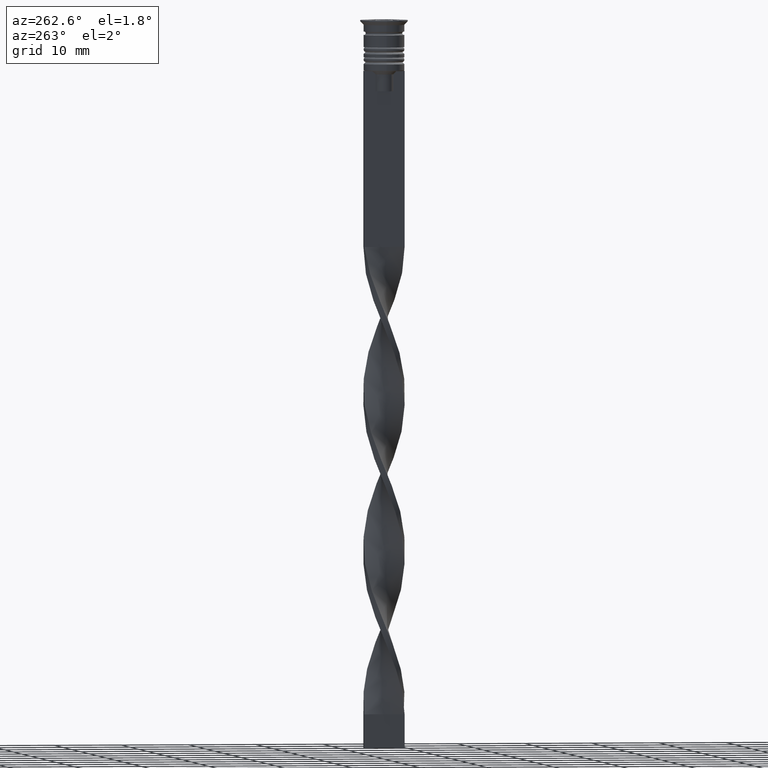
[diagram: clean part render]
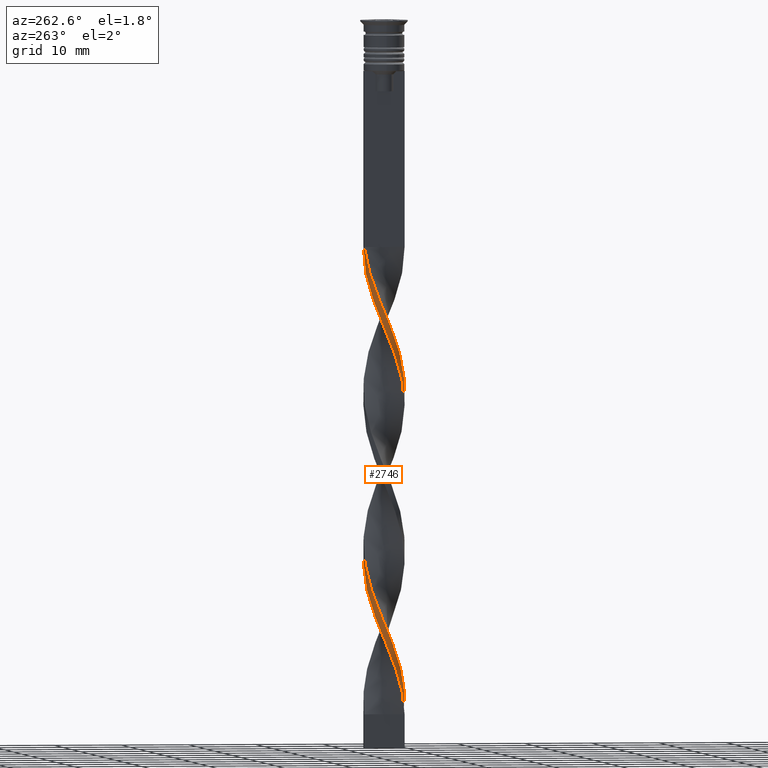
[diagram: same view with one face highlighted and labeled with its STEP entity id]
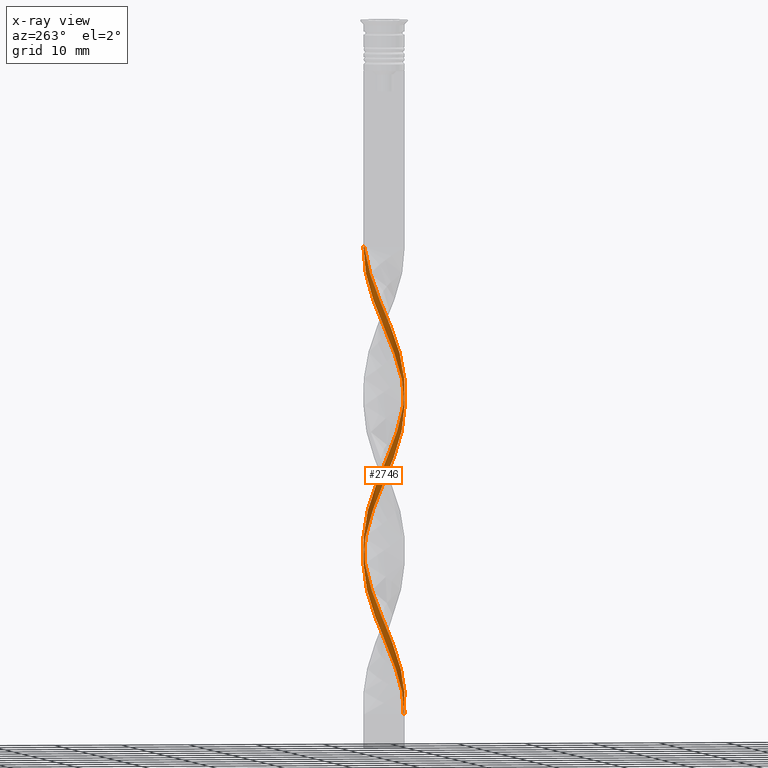
[diagram: x-ray of the same camera — body ghosted, the highlighted face saturated]
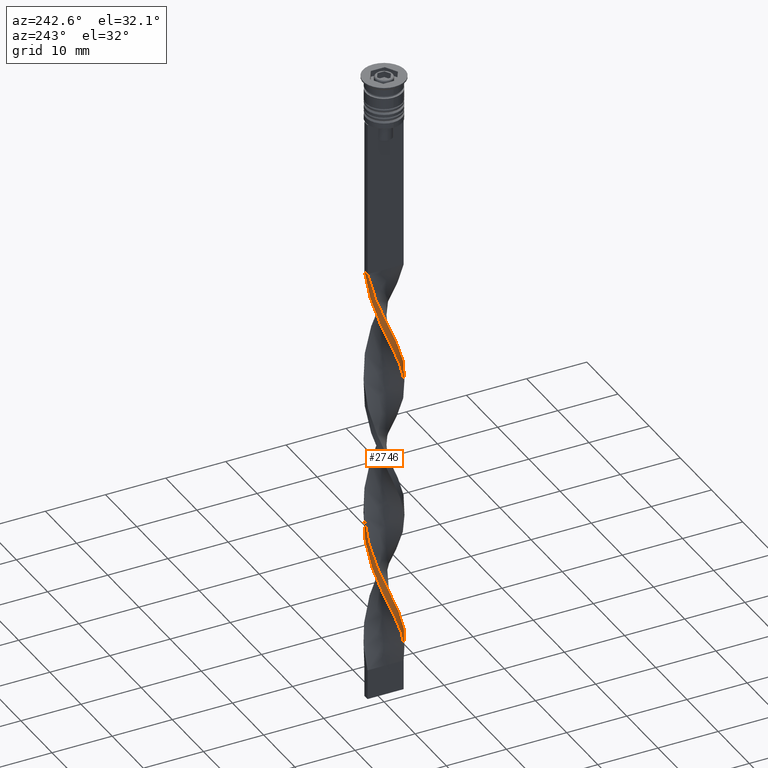
[diagram: same view with one face highlighted and labeled with its STEP entity id]
A machine part, auxiliary view. The second image highlights one B-rep face of the part: STEP entity #2746.
The next image is the same camera in x-ray: the body ghosted, the highlighted face saturated — about 0% of this face is hidden behind the body in this view.
A second angle (auxiliary view) of the same face is appended — the face is thin or edge-on in the first view.
In plain terms, the highlighted face is a freeform B-spline surface patch.
Its self-contained STEP definition (entity closure, byte-faithful):
#7 = CARTESIAN_POINT ( 'NONE',  ( -3.022034030597048559, -0.5036723384328413156, -91.00000000000001421 ) ) ;
#20 = CARTESIAN_POINT ( 'NONE',  ( -1.928028413296781762, 2.380983398537114049, -85.69230769230770761 ) ) ;
#24 = CARTESIAN_POINT ( 'NONE',  ( -1.928028413296782206, -2.380983398537113160, -50.30769230769232081 ) ) ;
#38 = CARTESIAN_POINT ( 'NONE',  ( 2.982351171577512616, -0.5963065397849001137, -65.34615384615385381 ) ) ;
#42 = CARTESIAN_POINT ( 'NONE',  ( -0.2324760841496473773, 3.032483284421934933, -35.26923076923077360 ) ) ;
#55 = CARTESIAN_POINT ( 'NONE',  ( -0.5000000000000001110, 3.000000000000000000, -79.50000000000001421 ) ) ;
#58 = CARTESIAN_POINT ( 'NONE',  ( -0.2324760841496473773, 3.032483284421934933, -81.26923076923077360 ) ) ;
#69 = CARTESIAN_POINT ( 'NONE',  ( -1.302196787976888537, -2.773203748730288076, -52.07692307692308020 ) ) ;
#72 = CARTESIAN_POINT ( 'NONE',  ( -1.542569853484617060, 2.647046231879885081, -36.15384615384615330 ) ) ;
#89 = CARTESIAN_POINT ( 'NONE',  ( 0.4999999999999998890, 3.000000000000000000, -33.50000000000000000 ) ) ;
#92 = CARTESIAN_POINT ( 'NONE',  ( 0.6006862186325140351, 3.004255577232739949, -76.84615384615386802 ) ) ;
#109 = CARTESIAN_POINT ( 'NONE',  ( 0.6006862186325115927, -3.004255577232740393, -59.15384615384616041 ) ) ;
#111 = CARTESIAN_POINT ( 'NONE',  ( 1.542569853484615949, -2.647046231879885525, -59.15384615384616041 ) ) ;
#119 = CARTESIAN_POINT ( 'NONE',  ( -0.5000000000000002220, -3.000000000000000000, -102.5000000000000142 ) ) ;
#122 = CARTESIAN_POINT ( 'NONE',  ( -2.909946448908425687, -0.9584295337030731554, -94.53846153846154721 ) ) ;
#124 = CARTESIAN_POINT ( 'NONE',  ( -2.917858282166500672, -0.8579644778149958517, -91.88461538461540101 ) ) ;
#128 = CARTESIAN_POINT ( 'NONE',  ( -0.1357340503332189474, -3.060710991611130360, -57.38461538461538680 ) ) ;
#130 = CARTESIAN_POINT ( 'NONE',  ( -1.302196787976888537, -2.773203748730288076, -52.07692307692308020 ) ) ;
#141 = CARTESIAN_POINT ( 'NONE',  ( 0.1357340503332183645, 3.060710991611130360, -80.38461538461538680 ) ) ;
#144 = CARTESIAN_POINT ( 'NONE',  ( -1.615112600636835705, -2.577093573633700174, -51.19230769230769340 ) ) ;
#158 = CARTESIAN_POINT ( 'NONE',  ( 0.4999999999999997780, -3.000000000000000000, -102.5000000000000142 ) ) ;
#169 = CARTESIAN_POINT ( 'NONE',  ( -3.054755894246598658, -0.2341835458667257397, -92.76923076923077360 ) ) ;
#173 = CARTESIAN_POINT ( 'NONE',  ( 2.596021493184669904, 1.626975080790203032, -73.30769230769232081 ) ) ;
#174 = CARTESIAN_POINT ( 'NONE',  ( -2.813682533735953228, 1.212256617197151165, -89.23076923076922640 ) ) ;
#187 =( BOUNDED_CURVE ( )  B_SPLINE_CURVE ( 2, ( #2970, #503, #42, #2680, #1566, #3233, #2914, #2630, #1350, #1299, #286, #2148, #2421, #780, #1583, #268, #2644, #1091, #761, #2401, #2130, #1863, #2383, #1606, #3214, #823, #1885, #2954, #3417, #1109, #1623, #303, #2171, #838, #1903, #574, #2364, #1037, #2094, #1827, #2896, #938, #1495, #1226, #2570, #173, #1125, #1244, #2306, #338, #3361, #1638, #2188, #2712, #58, #321, #2985, #1400, #2469, #20, #3344, #1750, #360, #651, #2011, #2771, #383, #169, #2527, #122, #3077, #3276, #882, #1945, #2155, #3254, #274, #3198, #292 ),
 .UNSPECIFIED., .F., .T. ) 
 B_SPLINE_CURVE_WITH_KNOTS ( ( 3, 2, 2, 2, 2, 2, 2, 2, 2, 2, 2, 2, 2, 2, 2, 2, 2, 2, 2, 2, 2, 2, 2, 2, 2, 2, 2, 2, 2, 2, 2, 2, 2, 2, 2, 2, 2, 2, 2, 3 ),
 ( 0.000000000000000000, 0.01923076923076923184, 0.03846153846153846367, 0.05769230769230768857, 0.07692307692307692735, 0.09615384615384615918, 0.1153846153846153771, 0.1346153846153846090, 0.1538461538461538547, 0.1730769230769230449, 0.1923076923076923184, 0.2115384615384615363, 0.2307692307692307543, 0.2500000000000000000, 0.2692307692307692180, 0.2884615384615384359, 0.3076923076923077094, 0.3269230769230769273, 0.3461538461538460898, 0.3653846153846153633, 0.3846153846153846367, 0.4038461538461539102, 0.4230769230769230727, 0.4423076923076922906, 0.4615384615384615086, 0.4807692307692307820, 0.5000000000000000000, 0.5192307692307692735, 0.5384615384615384359, 0.5576923076923077094, 0.5769230769230768718, 0.5961538461538461453, 0.6153846153846154188, 0.6346153846153845812, 0.6538461538461538547, 0.6730769230769230171, 0.6923076923076921796, 0.7115384615384615641, 0.7307692307692307265, 0.7500000000000000000 ),
 .UNSPECIFIED. ) 
 CURVE ( )  GEOMETRIC_REPRESENTATION_ITEM ( )  RATIONAL_B_SPLINE_CURVE ( ( 1.000000000000000000, 0.9927088740980539727, 1.000000000000000000, 0.9927088740980539727, 1.000000000000000000, 0.9927088740980539727, 1.000000000000000000, 0.9927088740980539727, 1.000000000000000000, 0.9927088740980539727, 1.000000000000000000, 0.9927088740980539727, 1.000000000000000000, 0.9927088740980539727, 1.000000000000000000, 0.9927088740980539727, 1.000000000000000000, 0.9927088740980539727, 1.000000000000000000, 0.9927088740980539727, 1.000000000000000000, 0.9927088740980539727, 1.000000000000000000, 0.9927088740980539727, 1.000000000000000000, 0.9927088740980539727, 1.000000000000000000, 0.9927088740980539727, 1.000000000000000000, 0.9927088740980539727, 1.000000000000000000, 0.9927088740980539727, 1.000000000000000000, 0.9927088740980539727, 1.000000000000000000, 0.9927088740980539727, 1.000000000000000000, 0.9927088740980539727, 1.000000000000000000, 0.9927088740980539727, 1.000000000000000000, 0.9927088740980539727, 1.000000000000000000, 0.9927088740980539727, 1.000000000000000000, 0.9927088740980539727, 1.000000000000000000, 0.9927088740980539727, 1.000000000000000000, 0.9927088740980539727, 1.000000000000000000, 0.9927088740980539727, 1.000000000000000000, 0.9927088740980539727, 1.000000000000000000, 0.9927088740980539727, 1.000000000000000000, 0.9927088740980539727, 1.000000000000000000, 0.9927088740980539727, 1.000000000000000000, 0.9927088740980539727, 1.000000000000000000, 0.9927088740980539727, 1.000000000000000000, 0.9927088740980539727, 1.000000000000000000, 0.9927088740980539727, 1.000000000000000000, 0.9927088740980539727, 1.000000000000000000, 0.9927088740980539727, 1.000000000000000000, 0.9927088740980539727, 1.000000000000000000, 0.9927088740980539727, 1.000000000000000000, 0.9927088740980539727, 1.000000000000000000 ) ) 
 REPRESENTATION_ITEM ( '' )  );
#190 = CARTESIAN_POINT ( 'NONE',  ( -2.363623348807936342, -1.913970915392904981, -97.19230769230770761 ) ) ;
#209 = CARTESIAN_POINT ( 'NONE',  ( -3.054755894246598658, -0.2341835458667257397, -92.76923076923075939 ) ) ;
#239 = CARTESIAN_POINT ( 'NONE',  ( -2.982351171577512616, -0.5963065397848991145, -93.65384615384617462 ) ) ;
#263 = CARTESIAN_POINT ( 'NONE',  ( -0.5000000000000001110, 3.000000000000000000, -33.50000000000000000 ) ) ;
#268 = CARTESIAN_POINT ( 'NONE',  ( -3.054755894246598658, -0.2341835458667257397, -46.76923076923077360 ) ) ;
#274 = CARTESIAN_POINT ( 'NONE',  ( -1.203417901575700277, -2.793167620134377138, -100.7307692307692406 ) ) ;
#278 = DIRECTION ( 'NONE',  ( -1.000000000000000000, 0.000000000000000000, 0.000000000000000000 ) ) ;
#282 = CARTESIAN_POINT ( 'NONE',  ( 3.038394962421823831, 0.1347443962830564002, -67.11538461538461320 ) ) ;
#286 = CARTESIAN_POINT ( 'NONE',  ( -2.627746284534976606, 1.531322782470314836, -42.34615384615385381 ) ) ;
#292 = CARTESIAN_POINT ( 'NONE',  ( -0.5000000000000002220, -3.000000000000000000, -102.5000000000000142 ) ) ;
#299 = CARTESIAN_POINT ( 'NONE',  ( 2.596021493184667683, -1.626975080790206141, -62.69230769230770051 ) ) ;
#303 = CARTESIAN_POINT ( 'NONE',  ( 1.302196787976888093, -2.773203748730288964, -60.92307692307692690 ) ) ;
#318 = CARTESIAN_POINT ( 'NONE',  ( -2.363623348807935898, 1.913970915392905869, -38.80769230769230660 ) ) ;
#321 = CARTESIAN_POINT ( 'NONE',  ( -0.6006862186325128139, 3.004255577232739949, -82.15384615384617462 ) ) ;
#334 = CARTESIAN_POINT ( 'NONE',  ( -2.596021493184668572, 1.626975080790205475, -39.69230769230769340 ) ) ;
#338 = CARTESIAN_POINT ( 'NONE',  ( 1.542569853484617948, 2.647046231879884193, -76.84615384615386802 ) ) ;
#345 = CARTESIAN_POINT ( 'NONE',  ( -2.752983971046547129, 1.292702307246639482, -86.57692307692308020 ) ) ;
#348 = CARTESIAN_POINT ( 'NONE',  ( -0.1357340503332168102, 3.060710991611130805, -78.61538461538461320 ) ) ;
#360 = CARTESIAN_POINT ( 'NONE',  ( -2.627746284534976606, 1.531322782470314836, -88.34615384615385381 ) ) ;
#365 = CARTESIAN_POINT ( 'NONE',  ( 3.022034030597048559, -0.5036723384328418707, -68.00000000000000000 ) ) ;
#368 = CARTESIAN_POINT ( 'NONE',  ( -2.441810035334000428, -1.850388947743477619, -48.53846153846154721 ) ) ;
#383 = CARTESIAN_POINT ( 'NONE',  ( -3.038394962421823386, 0.1347443962830582320, -91.88461538461540101 ) ) ;
#387 = CARTESIAN_POINT ( 'NONE',  ( 1.928028413296780874, -2.380983398537114049, -62.69230769230770051 ) ) ;
#389 = CARTESIAN_POINT ( 'NONE',  ( -2.627746284534977050, -1.531322782470313948, -47.65384615384616041 ) ) ;
#401 = CARTESIAN_POINT ( 'NONE',  ( 0.8642659496667831620, 2.939289008388869195, -78.61538461538461320 ) ) ;
#414 = CARTESIAN_POINT ( 'NONE',  ( -2.909946448908425243, -0.9584295337030731554, -48.53846153846154010 ) ) ;
#424 = VECTOR ( 'NONE', #278, 1000.000000000000000 ) ;
#475 = EDGE_CURVE ( 'NONE', #950, #483, #1723, .T. ) ;
#483 = VERTEX_POINT ( 'NONE', #914 ) ;
#503 = CARTESIAN_POINT ( 'NONE',  ( 0.1357340503332183368, 3.060710991611130360, -34.38461538461538680 ) ) ;
#539 = CARTESIAN_POINT ( 'NONE',  ( -2.813682533735953228, -1.212256617197150943, -92.76923076923075939 ) ) ;
#554 = CARTESIAN_POINT ( 'NONE',  ( -2.982351171577512172, 0.5963065397848998916, -88.34615384615385381 ) ) ;
#569 = CARTESIAN_POINT ( 'NONE',  ( -2.627746284534977050, -1.531322782470313948, -47.65384615384616041 ) ) ;
#574 = CARTESIAN_POINT ( 'NONE',  ( 2.441810035333999540, -1.850388947743479173, -64.46153846153845279 ) ) ;
#589 = CARTESIAN_POINT ( 'NONE',  ( 0.6006862186325140351, 3.004255577232739949, -76.84615384615386802 ) ) ;
#604 = CARTESIAN_POINT ( 'NONE',  ( -2.813682533735953228, -1.212256617197150943, -46.76923076923076650 ) ) ;
#607 = CARTESIAN_POINT ( 'NONE',  ( 0.2324760841496499864, 3.032483284421934489, -77.73076923076924061 ) ) ;
#614 = ORIENTED_EDGE ( 'NONE', *, *, #1256, .T. ) ;
#616 = CARTESIAN_POINT ( 'NONE',  ( -1.928028413296782206, -2.380983398537113160, -96.30769230769232081 ) ) ;
#620 = CARTESIAN_POINT ( 'NONE',  ( -0.2324760841496483210, -3.032483284421934933, -100.7307692307692406 ) ) ;
#622 = CARTESIAN_POINT ( 'NONE',  ( -2.813682533735953228, -1.212256617197150943, -46.76923076923077360 ) ) ;
#637 = CARTESIAN_POINT ( 'NONE',  ( -2.363623348807936342, -1.913970915392904981, -51.19230769230769340 ) ) ;
#651 = CARTESIAN_POINT ( 'NONE',  ( -2.813682533735953228, 1.212256617197151165, -89.23076923076924061 ) ) ;
#655 = CARTESIAN_POINT ( 'NONE',  ( 0.2324760841496463504, -3.032483284421934933, -58.26923076923077360 ) ) ;
#657 = CARTESIAN_POINT ( 'NONE',  ( 1.836897528957910586, -2.424006490937745451, -60.03846153846154010 ) ) ;
#669 = CARTESIAN_POINT ( 'NONE',  ( -0.2324760841496473773, 3.032483284421934933, -35.26923076923077360 ) ) ;
#672 = CARTESIAN_POINT ( 'NONE',  ( -2.363623348807935898, 1.913970915392905869, -84.80769230769232081 ) ) ;
#687 = CARTESIAN_POINT ( 'NONE',  ( 0.9514415033047005643, -2.888729662981513790, -60.03846153846154010 ) ) ;
#733 = CARTESIAN_POINT ( 'NONE',  ( -2.627746284534976606, 1.531322782470314836, -88.34615384615385381 ) ) ;
#761 = CARTESIAN_POINT ( 'NONE',  ( -2.752983971046547129, -1.292702307246638815, -49.42307692307693401 ) ) ;
#780 = CARTESIAN_POINT ( 'NONE',  ( -3.022034030597048559, 0.5036723384328415376, -45.00000000000000711 ) ) ;
#793 = CARTESIAN_POINT ( 'NONE',  ( 1.203417901575698501, -2.793167620134377582, -58.26923076923077360 ) ) ;
#819 = CARTESIAN_POINT ( 'NONE',  ( 0.9514415033047027848, 2.888729662981513346, -75.96153846153846700 ) ) ;
#823 = CARTESIAN_POINT ( 'NONE',  ( -0.8642659496667828289, -2.939289008388869640, -55.61538461538462741 ) ) ;
#834 = CARTESIAN_POINT ( 'NONE',  ( 2.752983971046547129, -1.292702307246639482, -63.57692307692308731 ) ) ;
#838 = CARTESIAN_POINT ( 'NONE',  ( 1.928028413296780874, -2.380983398537114493, -62.69230769230770051 ) ) ;
#850 = CARTESIAN_POINT ( 'NONE',  ( -3.054755894246598658, 0.2341835458667258230, -43.23076923076922640 ) ) ;
#865 = CARTESIAN_POINT ( 'NONE',  ( 3.022034030597048559, 0.5036723384328409825, -68.00000000000000000 ) ) ;
#868 = CARTESIAN_POINT ( 'NONE',  ( 3.054755894246598658, -0.2341835458667256287, -66.23076923076922640 ) ) ;
#882 = CARTESIAN_POINT ( 'NONE',  ( -2.363623348807936342, -1.913970915392904981, -97.19230769230770761 ) ) ;
#888 = CARTESIAN_POINT ( 'NONE',  ( -1.203417901575700277, -2.793167620134377138, -54.73076923076923350 ) ) ;
#890 = CARTESIAN_POINT ( 'NONE',  ( -2.596021493184668572, 1.626975080790205697, -85.69230769230770761 ) ) ;
#903 = CARTESIAN_POINT ( 'NONE',  ( 2.596021493184669904, 1.626975080790203032, -73.30769230769232081 ) ) ;
#906 = CARTESIAN_POINT ( 'NONE',  ( -1.542569853484617060, 2.647046231879885081, -82.15384615384617462 ) ) ;
#911 = CARTESIAN_POINT ( 'NONE',  ( -0.5000000000000002220, -3.000000000000000000, -102.5000000000000142 ) ) ;
#914 = CARTESIAN_POINT ( 'NONE',  ( 0.4999999999999997780, -3.000000000000000000, -102.5000000000000142 ) ) ;
#918 = CARTESIAN_POINT ( 'NONE',  ( 2.752983971046547573, 1.292702307246638371, -72.42307692307691980 ) ) ;
#921 = CARTESIAN_POINT ( 'NONE',  ( -2.752983971046547129, 1.292702307246639482, -40.57692307692308020 ) ) ;
#938 = CARTESIAN_POINT ( 'NONE',  ( 3.054755894246598658, 0.2341835458667245740, -69.76923076923077360 ) ) ;
#939 = CARTESIAN_POINT ( 'NONE',  ( -2.131225204431204112, -2.200966749995605820, -52.07692307692308020 ) ) ;
#941 = CARTESIAN_POINT ( 'NONE',  ( -1.836897528957910586, 2.424006490937745451, -83.03846153846154721 ) ) ;
#950 = VERTEX_POINT ( 'NONE', #2247 ) ;
#953 = CARTESIAN_POINT ( 'NONE',  ( -2.184919224315390984, 2.115686173140295612, -40.57692307692308020 ) ) ;
#978 = B_SPLINE_CURVE_WITH_KNOTS ( 'NONE', 3,
 ( #1254, #2248, #1520, #911 ),
 .UNSPECIFIED., .F., .F.,
 ( 4, 4 ),
 ( 0.000000000000000000, 1.000000000000000000 ),
 .UNSPECIFIED. ) ;
#987 = EDGE_LOOP ( 'NONE', ( #1867, #614, #2628, #2386 ) ) ;
#1011 = CARTESIAN_POINT ( 'NONE',  ( -2.917858282166500228, 0.8579644778149966289, -90.11538461538462741 ) ) ;
#1037 = CARTESIAN_POINT ( 'NONE',  ( 2.813682533735953228, -1.212256617197150721, -66.23076923076922640 ) ) ;
#1050 = CARTESIAN_POINT ( 'NONE',  ( -2.752983971046547129, -1.292702307246638815, -95.42307692307693401 ) ) ;
#1070 = CARTESIAN_POINT ( 'NONE',  ( -2.917858282166500672, -0.8579644778149958517, -91.88461538461540101 ) ) ;
#1087 = CARTESIAN_POINT ( 'NONE',  ( 2.131225204431203668, -2.200966749995606708, -60.92307692307691980 ) ) ;
#1091 = CARTESIAN_POINT ( 'NONE',  ( -2.909946448908425687, -0.9584295337030731554, -48.53846153846154721 ) ) ;
#1104 = CARTESIAN_POINT ( 'NONE',  ( -2.441810035334000428, -1.850388947743477397, -48.53846153846154010 ) ) ;
#1109 = CARTESIAN_POINT ( 'NONE',  ( 0.6006862186325115927, -3.004255577232740393, -59.15384615384616041 ) ) ;
#1121 = CARTESIAN_POINT ( 'NONE',  ( -0.8642659496667818297, 2.939289008388869640, -80.38461538461538680 ) ) ;
#1125 = CARTESIAN_POINT ( 'NONE',  ( 2.363623348807936786, 1.913970915392904315, -74.19230769230769340 ) ) ;
#1136 = CARTESIAN_POINT ( 'NONE',  ( 0.1357340503332171988, -3.060710991611130360, -55.61538461538462741 ) ) ;
#1138 = CARTESIAN_POINT ( 'NONE',  ( -2.363623348807935898, 1.913970915392905869, -38.80769230769230660 ) ) ;
#1153 = CARTESIAN_POINT ( 'NONE',  ( -2.627746284534977050, -1.531322782470313948, -93.65384615384617462 ) ) ;
#1156 = CARTESIAN_POINT ( 'NONE',  ( -1.302196787976888093, 2.773203748730288520, -37.92307692307692690 ) ) ;
#1160 = CARTESIAN_POINT ( 'NONE',  ( -2.131225204431204112, 2.200966749995606264, -83.92307692307693401 ) ) ;
#1174 = CARTESIAN_POINT ( 'NONE',  ( 3.054755894246598658, 0.2341835458667246017, -69.76923076923077360 ) ) ;
#1176 = CARTESIAN_POINT ( 'NONE',  ( -2.184919224315391428, -2.115686173140295168, -49.42307692307693401 ) ) ;
#1192 = CARTESIAN_POINT ( 'NONE',  ( -0.6006862186325128139, 3.004255577232739949, -36.15384615384615330 ) ) ;
#1195 = CARTESIAN_POINT ( 'NONE',  ( 1.928028413296783983, 2.380983398537111828, -73.30769230769232081 ) ) ;
#1209 = CARTESIAN_POINT ( 'NONE',  ( -0.2324760841496473773, 3.032483284421934933, -81.26923076923077360 ) ) ;
#1211 = CARTESIAN_POINT ( 'NONE',  ( -0.5000000000000001110, 3.000000000000000000, -79.50000000000001421 ) ) ;
#1224 = CARTESIAN_POINT ( 'NONE',  ( -2.441810035334000428, -1.850388947743477619, -94.53846153846154721 ) ) ;
#1226 = CARTESIAN_POINT ( 'NONE',  ( 2.909946448908426575, 0.9584295337030716011, -71.53846153846154721 ) ) ;
#1227 = CARTESIAN_POINT ( 'NONE',  ( -0.9514415033047011194, -2.888729662981513790, -98.96153846153848122 ) ) ;
#1244 = CARTESIAN_POINT ( 'NONE',  ( 2.131225204431204556, 2.200966749995605820, -75.07692307692308020 ) ) ;
#1245 = CARTESIAN_POINT ( 'NONE',  ( -3.038394962421823386, 0.1347443962830582320, -91.88461538461540101 ) ) ;
#1254 = CARTESIAN_POINT ( 'NONE',  ( 0.4999999999999997780, -3.000000000000000000, -102.5000000000000142 ) ) ;
#1256 = EDGE_CURVE ( 'NONE', #1491, #1621, #187, .T. ) ;
#1259 = CARTESIAN_POINT ( 'NONE',  ( -1.615112600636834816, 2.577093573633700618, -84.80769230769232081 ) ) ;
#1279 = CARTESIAN_POINT ( 'NONE',  ( -2.596021493184668572, -1.626975080790204364, -96.30769230769232081 ) ) ;
#1299 = CARTESIAN_POINT ( 'NONE',  ( -2.441810035334000872, 1.850388947743477841, -41.46153846153846700 ) ) ;
#1330 = CARTESIAN_POINT ( 'NONE',  ( -1.203417901575699389, 2.793167620134377582, -35.26923076923077360 ) ) ;
#1346 = CARTESIAN_POINT ( 'NONE',  ( 2.627746284534977050, 1.531322782470314392, -70.65384615384616041 ) ) ;
#1350 = CARTESIAN_POINT ( 'NONE',  ( -2.184919224315390984, 2.115686173140295612, -40.57692307692308020 ) ) ;
#1360 = LINE ( 'NONE', #3409, #424 ) ;
#1364 = CARTESIAN_POINT ( 'NONE',  ( -0.6006862186325138131, -3.004255577232739949, -53.84615384615384670 ) ) ;
#1383 = CARTESIAN_POINT ( 'NONE',  ( -0.1357340503332168102, 3.060710991611130805, -78.61538461538461320 ) ) ;
#1396 = CARTESIAN_POINT ( 'NONE',  ( -3.022034030597048559, -0.5036723384328413156, -45.00000000000000711 ) ) ;
#1399 = CARTESIAN_POINT ( 'NONE',  ( -3.038394962421823831, -0.1347443962830574271, -44.11538461538462030 ) ) ;
#1400 = CARTESIAN_POINT ( 'NONE',  ( -1.302196787976888315, 2.773203748730288520, -83.92307692307693401 ) ) ;
#1412 = CARTESIAN_POINT ( 'NONE',  ( 2.441810035333999540, -1.850388947743478951, -64.46153846153845279 ) ) ;
#1415 = CARTESIAN_POINT ( 'NONE',  ( 0.1357340503332171711, -3.060710991611130360, -55.61538461538462741 ) ) ;
#1433 = CARTESIAN_POINT ( 'NONE',  ( -2.752983971046547129, -1.292702307246638815, -49.42307692307693401 ) ) ;
#1436 = CARTESIAN_POINT ( 'NONE',  ( 1.203417901575698501, -2.793167620134377582, -58.26923076923077360 ) ) ;
#1451 = CARTESIAN_POINT ( 'NONE',  ( 2.813682533735953228, -1.212256617197150721, -66.23076923076922640 ) ) ;
#1453 = CARTESIAN_POINT ( 'NONE',  ( -1.836897528957910586, 2.424006490937745451, -37.03846153846154010 ) ) ;
#1464 = CARTESIAN_POINT ( 'NONE',  ( 1.203417901575701610, 2.793167620134376250, -77.73076923076924061 ) ) ;
#1466 = CARTESIAN_POINT ( 'NONE',  ( 3.038394962421823831, 0.1347443962830564002, -67.11538461538461320 ) ) ;
#1479 = CARTESIAN_POINT ( 'NONE',  ( 0.1357340503332183645, 3.060710991611130360, -34.38461538461538680 ) ) ;
#1491 = VERTEX_POINT ( 'NONE', #1891 ) ;
#1495 = CARTESIAN_POINT ( 'NONE',  ( 2.982351171577512616, 0.5963065397848995586, -70.65384615384616041 ) ) ;
#1513 = FACE_OUTER_BOUND ( 'NONE', #987, .T. ) ;
#1520 = CARTESIAN_POINT ( 'NONE',  ( -0.1666666666666669072, -3.000000000000000000, -102.5000000000000142 ) ) ;
#1546 = CARTESIAN_POINT ( 'NONE',  ( -2.909946448908426131, 0.9584295337030733775, -87.46153846153849543 ) ) ;
#1566 = CARTESIAN_POINT ( 'NONE',  ( -0.9514415033047005643, 2.888729662981513790, -37.03846153846154010 ) ) ;
#1583 = CARTESIAN_POINT ( 'NONE',  ( -3.038394962421823386, 0.1347443962830582320, -45.88461538461538680 ) ) ;
#1601 = CARTESIAN_POINT ( 'NONE',  ( -2.627746284534977050, -1.531322782470313948, -93.65384615384617462 ) ) ;
#1606 = CARTESIAN_POINT ( 'NONE',  ( -1.542569853484617726, -2.647046231879884193, -53.84615384615384670 ) ) ;
#1612 = EDGE_CURVE ( 'NONE', #483, #1621, #978, .T. ) ;
#1619 = CARTESIAN_POINT ( 'NONE',  ( -2.982351171577512172, 0.5963065397848998916, -42.34615384615385381 ) ) ;
#1621 = VERTEX_POINT ( 'NONE', #119 ) ;
#1623 = CARTESIAN_POINT ( 'NONE',  ( 0.9514415033047005643, -2.888729662981513790, -60.03846153846154010 ) ) ;
#1634 = CARTESIAN_POINT ( 'NONE',  ( -2.184919224315391428, -2.115686173140295168, -49.42307692307693401 ) ) ;
#1638 = CARTESIAN_POINT ( 'NONE',  ( 0.8642659496667832730, 2.939289008388869195, -78.61538461538461320 ) ) ;
#1656 = CARTESIAN_POINT ( 'NONE',  ( 1.615112600636836149, 2.577093573633699730, -74.19230769230769340 ) ) ;
#1670 = CARTESIAN_POINT ( 'NONE',  ( -1.836897528957910586, 2.424006490937745451, -83.03846153846154721 ) ) ;
#1674 = CARTESIAN_POINT ( 'NONE',  ( -2.909946448908426131, 0.9584295337030733775, -41.46153846153846700 ) ) ;
#1683 = CARTESIAN_POINT ( 'NONE',  ( -0.6006862186325138131, -3.004255577232739949, -99.84615384615386802 ) ) ;
#1686 = CARTESIAN_POINT ( 'NONE',  ( -3.054755894246598658, -0.2341835458667257397, -46.76923076923076650 ) ) ;
#1705 = CARTESIAN_POINT ( 'NONE',  ( 2.982351171577512616, 0.5963065397848995586, -70.65384615384616041 ) ) ;
#1708 = CARTESIAN_POINT ( 'NONE',  ( -1.203417901575699389, 2.793167620134377582, -35.26923076923077360 ) ) ;
#1723 =( BOUNDED_CURVE ( )  B_SPLINE_CURVE ( 2, ( #3034, #2468, #1708, #72, #1453, #2521, #1138, #2275, #921, #1674, #3068, #3335, #1399, #2759, #2778, #622, #389, #368, #1176, #2507, #144, #130, #1953, #2224, #3018, #1415, #2257, #3002, #1436, #111, #657, #2201, #2745, #3264, #1726, #2793, #3313, #868, #1466, #1936, #2809, #1986, #2534, #2240, #2482, #1195, #2003, #1967, #3300, #92, #607, #348, #1211, #3285, #1740, #906, #941, #1160, #672, #890, #2575, #1546, #3105, #2858, #2342, #3396, #124, #3307, #1153, #1224, #3079, #616, #1980, #3063, #3012, #1683, #2820, #3050, #3293 ),
 .UNSPECIFIED., .F., .T. ) 
 B_SPLINE_CURVE_WITH_KNOTS ( ( 3, 2, 2, 2, 2, 2, 2, 2, 2, 2, 2, 2, 2, 2, 2, 2, 2, 2, 2, 2, 2, 2, 2, 2, 2, 2, 2, 2, 2, 2, 2, 2, 2, 2, 2, 2, 2, 2, 2, 3 ),
 ( 0.000000000000000000, 0.01923076923076923184, 0.03846153846153846367, 0.05769230769230768857, 0.07692307692307692735, 0.09615384615384615918, 0.1153846153846153771, 0.1346153846153846090, 0.1538461538461538547, 0.1730769230769230449, 0.1923076923076923184, 0.2115384615384615363, 0.2307692307692307543, 0.2500000000000000000, 0.2692307692307692180, 0.2884615384615384359, 0.3076923076923077094, 0.3269230769230769273, 0.3461538461538460898, 0.3653846153846153633, 0.3846153846153846367, 0.4038461538461539102, 0.4230769230769230727, 0.4423076923076922906, 0.4615384615384615086, 0.4807692307692307820, 0.5000000000000000000, 0.5192307692307692735, 0.5384615384615384359, 0.5576923076923077094, 0.5769230769230768718, 0.5961538461538461453, 0.6153846153846154188, 0.6346153846153845812, 0.6538461538461538547, 0.6730769230769230171, 0.6923076923076921796, 0.7115384615384615641, 0.7307692307692307265, 0.7500000000000000000 ),
 .UNSPECIFIED. ) 
 CURVE ( )  GEOMETRIC_REPRESENTATION_ITEM ( )  RATIONAL_B_SPLINE_CURVE ( ( 1.000000000000000000, 0.9927088740980539727, 1.000000000000000000, 0.9927088740980539727, 1.000000000000000000, 0.9927088740980539727, 1.000000000000000000, 0.9927088740980539727, 1.000000000000000000, 0.9927088740980539727, 1.000000000000000000, 0.9927088740980539727, 1.000000000000000000, 0.9927088740980539727, 1.000000000000000000, 0.9927088740980539727, 1.000000000000000000, 0.9927088740980539727, 1.000000000000000000, 0.9927088740980539727, 1.000000000000000000, 0.9927088740980539727, 1.000000000000000000, 0.9927088740980539727, 1.000000000000000000, 0.9927088740980539727, 1.000000000000000000, 0.9927088740980539727, 1.000000000000000000, 0.9927088740980539727, 1.000000000000000000, 0.9927088740980539727, 1.000000000000000000, 0.9927088740980539727, 1.000000000000000000, 0.9927088740980539727, 1.000000000000000000, 0.9927088740980539727, 1.000000000000000000, 0.9927088740980539727, 1.000000000000000000, 0.9927088740980539727, 1.000000000000000000, 0.9927088740980539727, 1.000000000000000000, 0.9927088740980539727, 1.000000000000000000, 0.9927088740980539727, 1.000000000000000000, 0.9927088740980539727, 1.000000000000000000, 0.9927088740980539727, 1.000000000000000000, 0.9927088740980539727, 1.000000000000000000, 0.9927088740980539727, 1.000000000000000000, 0.9927088740980539727, 1.000000000000000000, 0.9927088740980539727, 1.000000000000000000, 0.9927088740980539727, 1.000000000000000000, 0.9927088740980539727, 1.000000000000000000, 0.9927088740980539727, 1.000000000000000000, 0.9927088740980539727, 1.000000000000000000, 0.9927088740980539727, 1.000000000000000000, 0.9927088740980539727, 1.000000000000000000, 0.9927088740980539727, 1.000000000000000000, 0.9927088740980539727, 1.000000000000000000, 0.9927088740980539727, 1.000000000000000000 ) ) 
 REPRESENTATION_ITEM ( '' )  );
#1724 = CARTESIAN_POINT ( 'NONE',  ( 1.542569853484618170, 2.647046231879884193, -76.84615384615386802 ) ) ;
#1726 = CARTESIAN_POINT ( 'NONE',  ( 2.752983971046547129, -1.292702307246639482, -63.57692307692308731 ) ) ;
#1737 = CARTESIAN_POINT ( 'NONE',  ( 2.184919224315390984, -2.115686173140295612, -63.57692307692308731 ) ) ;
#1738 =( BOUNDED_SURFACE ( )  B_SPLINE_SURFACE ( 1, 2, ( 
 ( #263, #2859, #1330, #3397, #3366, #2070, #318, #334, #2417, #3245, #1619, #850, #3261, #1396, #2126, #604, #569, #1104, #1634, #24, #2466, #69, #3188, #1364, #1914, #1136, #2199, #2432, #793, #2980, #2168, #1087, #2691, #299, #834, #1857, #38, #2742, #282, #865, #2452, #2143, #1346, #2950, #3209, #2708, #1656, #1934, #819, #589, #2999, #1383, #55, #1121, #3229, #2931, #1670, #1899, #1880, #2730, #345, #2967, #554, #2182, #2398, #7, #1070, #539, #1601, #2677, #2807, #3298, #1756, #2254, #1227, #2221, #620, #2289, #158 ),
 ( #89, #1479, #669, #1192, #2272, #1156, #1950, #3346, #953, #2238, #1983, #3282, #3066, #2505, #2001, #1686, #2791, #414, #1433, #3333, #637, #939, #2015, #2553, #888, #3081, #3054, #128, #655, #109, #687, #2823, #3015, #387, #1737, #1412, #2479, #1451, #2757, #365, #3311, #1174, #1705, #2776, #918, #903, #2519, #1965, #3032, #1724, #1464, #401, #2531, #141, #1209, #2067, #3148, #2638, #1259, #2086, #1820, #3130, #733, #174, #1011, #2032, #1245, #209, #239, #1799, #1050, #1279, #190, #2107, #2323, #3380, #2589, #2841, #3167 ) ),
 .UNSPECIFIED., .F., .F., .F. ) 
 B_SPLINE_SURFACE_WITH_KNOTS ( ( 2, 2 ),
 ( 3, 2, 2, 2, 2, 2, 2, 2, 2, 2, 2, 2, 2, 2, 2, 2, 2, 2, 2, 2, 2, 2, 2, 2, 2, 2, 2, 2, 2, 2, 2, 2, 2, 2, 2, 2, 2, 2, 2, 3 ),
 ( 0.000000000000000000, 1.000000000000000000 ),
 ( 0.000000000000000000, 0.01923076923076923184, 0.03846153846153846367, 0.05769230769230769551, 0.07692307692307692735, 0.09615384615384615918, 0.1153846153846153910, 0.1346153846153846090, 0.1538461538461538547, 0.1730769230769230727, 0.1923076923076923184, 0.2115384615384615363, 0.2307692307692307820, 0.2500000000000000000, 0.2692307692307692180, 0.2884615384615384359, 0.3076923076923077094, 0.3269230769230769273, 0.3461538461538461453, 0.3653846153846153633, 0.3846153846153846367, 0.4038461538461538547, 0.4230769230769230727, 0.4423076923076922906, 0.4615384615384615641, 0.4807692307692307820, 0.5000000000000000000, 0.5192307692307692735, 0.5384615384615384359, 0.5576923076923077094, 0.5769230769230768718, 0.5961538461538461453, 0.6153846153846154188, 0.6346153846153845812, 0.6538461538461538547, 0.6730769230769231282, 0.6923076923076922906, 0.7115384615384615641, 0.7307692307692307265, 0.7500000000000000000 ),
 .UNSPECIFIED. ) 
 GEOMETRIC_REPRESENTATION_ITEM ( )  RATIONAL_B_SPLINE_SURFACE ( (
 ( 1.000000000000000000, 0.9927088740980539727, 1.000000000000000000, 0.9927088740980539727, 1.000000000000000000, 0.9927088740980539727, 1.000000000000000000, 0.9927088740980539727, 1.000000000000000000, 0.9927088740980539727, 1.000000000000000000, 0.9927088740980539727, 1.000000000000000000, 0.9927088740980539727, 1.000000000000000000, 0.9927088740980539727, 1.000000000000000000, 0.9927088740980539727, 1.000000000000000000, 0.9927088740980539727, 1.000000000000000000, 0.9927088740980539727, 1.000000000000000000, 0.9927088740980539727, 1.000000000000000000, 0.9927088740980539727, 1.000000000000000000, 0.9927088740980539727, 1.000000000000000000, 0.9927088740980539727, 1.000000000000000000, 0.9927088740980539727, 1.000000000000000000, 0.9927088740980539727, 1.000000000000000000, 0.9927088740980539727, 1.000000000000000000, 0.9927088740980539727, 1.000000000000000000, 0.9927088740980539727, 1.000000000000000000, 0.9927088740980539727, 1.000000000000000000, 0.9927088740980539727, 1.000000000000000000, 0.9927088740980539727, 1.000000000000000000, 0.9927088740980539727, 1.000000000000000000, 0.9927088740980539727, 1.000000000000000000, 0.9927088740980539727, 1.000000000000000000, 0.9927088740980539727, 1.000000000000000000, 0.9927088740980539727, 1.000000000000000000, 0.9927088740980539727, 1.000000000000000000, 0.9927088740980539727, 1.000000000000000000, 0.9927088740980539727, 1.000000000000000000, 0.9927088740980539727, 1.000000000000000000, 0.9927088740980539727, 1.000000000000000000, 0.9927088740980539727, 1.000000000000000000, 0.9927088740980539727, 1.000000000000000000, 0.9927088740980539727, 1.000000000000000000, 0.9927088740980539727, 1.000000000000000000, 0.9927088740980539727, 1.000000000000000000, 0.9927088740980539727, 1.000000000000000000),
 ( 1.000000000000000000, 0.9927088740980539727, 1.000000000000000000, 0.9927088740980539727, 1.000000000000000000, 0.9927088740980539727, 1.000000000000000000, 0.9927088740980539727, 1.000000000000000000, 0.9927088740980539727, 1.000000000000000000, 0.9927088740980539727, 1.000000000000000000, 0.9927088740980539727, 1.000000000000000000, 0.9927088740980539727, 1.000000000000000000, 0.9927088740980539727, 1.000000000000000000, 0.9927088740980539727, 1.000000000000000000, 0.9927088740980539727, 1.000000000000000000, 0.9927088740980539727, 1.000000000000000000, 0.9927088740980539727, 1.000000000000000000, 0.9927088740980539727, 1.000000000000000000, 0.9927088740980539727, 1.000000000000000000, 0.9927088740980539727, 1.000000000000000000, 0.9927088740980539727, 1.000000000000000000, 0.9927088740980539727, 1.000000000000000000, 0.9927088740980539727, 1.000000000000000000, 0.9927088740980539727, 1.000000000000000000, 0.9927088740980539727, 1.000000000000000000, 0.9927088740980539727, 1.000000000000000000, 0.9927088740980539727, 1.000000000000000000, 0.9927088740980539727, 1.000000000000000000, 0.9927088740980539727, 1.000000000000000000, 0.9927088740980539727, 1.000000000000000000, 0.9927088740980539727, 1.000000000000000000, 0.9927088740980539727, 1.000000000000000000, 0.9927088740980539727, 1.000000000000000000, 0.9927088740980539727, 1.000000000000000000, 0.9927088740980539727, 1.000000000000000000, 0.9927088740980539727, 1.000000000000000000, 0.9927088740980539727, 1.000000000000000000, 0.9927088740980539727, 1.000000000000000000, 0.9927088740980539727, 1.000000000000000000, 0.9927088740980539727, 1.000000000000000000, 0.9927088740980539727, 1.000000000000000000, 0.9927088740980539727, 1.000000000000000000, 0.9927088740980539727, 1.000000000000000000) ) ) 
 REPRESENTATION_ITEM ( '' )  SURFACE ( )  );
#1740 = CARTESIAN_POINT ( 'NONE',  ( -1.203417901575699389, 2.793167620134377582, -81.26923076923077360 ) ) ;
#1750 = CARTESIAN_POINT ( 'NONE',  ( -2.441810035334000872, 1.850388947743477841, -87.46153846153849543 ) ) ;
#1756 = CARTESIAN_POINT ( 'NONE',  ( -1.615112600636835705, -2.577093573633700174, -97.19230769230770761 ) ) ;
#1799 = CARTESIAN_POINT ( 'NONE',  ( -2.909946448908425243, -0.9584295337030731554, -94.53846153846153300 ) ) ;
#1820 = CARTESIAN_POINT ( 'NONE',  ( -2.184919224315390984, 2.115686173140295612, -86.57692307692308020 ) ) ;
#1827 = CARTESIAN_POINT ( 'NONE',  ( 3.022034030597048559, -0.5036723384328418707, -68.00000000000000000 ) ) ;
#1838 = EDGE_CURVE ( 'NONE', #1491, #950, #1360, .T. ) ;
#1857 = CARTESIAN_POINT ( 'NONE',  ( 2.909946448908424799, -0.9584295337030752648, -64.46153846153845279 ) ) ;
#1863 = CARTESIAN_POINT ( 'NONE',  ( -2.131225204431204112, -2.200966749995605820, -52.07692307692308020 ) ) ;
#1867 = ORIENTED_EDGE ( 'NONE', *, *, #1838, .F. ) ;
#1880 = CARTESIAN_POINT ( 'NONE',  ( -2.363623348807935898, 1.913970915392905869, -84.80769230769232081 ) ) ;
#1885 = CARTESIAN_POINT ( 'NONE',  ( -0.5000000000000002220, -3.000000000000000000, -56.50000000000000711 ) ) ;
#1891 = CARTESIAN_POINT ( 'NONE',  ( 0.4999999999999998890, 3.000000000000000000, -33.50000000000000000 ) ) ;
#1899 = CARTESIAN_POINT ( 'NONE',  ( -2.131225204431204112, 2.200966749995606264, -83.92307692307691980 ) ) ;
#1903 = CARTESIAN_POINT ( 'NONE',  ( 2.184919224315390984, -2.115686173140295612, -63.57692307692308731 ) ) ;
#1914 = CARTESIAN_POINT ( 'NONE',  ( -0.2324760841496483210, -3.032483284421934933, -54.73076923076923350 ) ) ;
#1934 = CARTESIAN_POINT ( 'NONE',  ( 1.302196787976888759, 2.773203748730288076, -75.07692307692308020 ) ) ;
#1936 = CARTESIAN_POINT ( 'NONE',  ( 3.022034030597048559, 0.5036723384328409825, -68.00000000000000000 ) ) ;
#1945 = CARTESIAN_POINT ( 'NONE',  ( -2.131225204431204112, -2.200966749995605820, -98.07692307692309441 ) ) ;
#1950 = CARTESIAN_POINT ( 'NONE',  ( -1.615112600636834816, 2.577093573633700618, -38.80769230769230660 ) ) ;
#1953 = CARTESIAN_POINT ( 'NONE',  ( -0.9514415033047011194, -2.888729662981513790, -52.96153846153845990 ) ) ;
#1965 = CARTESIAN_POINT ( 'NONE',  ( 2.131225204431204556, 2.200966749995605820, -75.07692307692308020 ) ) ;
#1967 = CARTESIAN_POINT ( 'NONE',  ( 1.302196787976888759, 2.773203748730288076, -75.07692307692308020 ) ) ;
#1980 = CARTESIAN_POINT ( 'NONE',  ( -1.615112600636835705, -2.577093573633700174, -97.19230769230770761 ) ) ;
#1983 = CARTESIAN_POINT ( 'NONE',  ( -2.627746284534976606, 1.531322782470314836, -42.34615384615385381 ) ) ;
#1986 = CARTESIAN_POINT ( 'NONE',  ( 2.813682533735953673, 1.212256617197149833, -69.76923076923077360 ) ) ;
#2001 = CARTESIAN_POINT ( 'NONE',  ( -3.038394962421823386, 0.1347443962830582320, -45.88461538461538680 ) ) ;
#2003 = CARTESIAN_POINT ( 'NONE',  ( 1.615112600636836149, 2.577093573633699730, -74.19230769230769340 ) ) ;
#2011 = CARTESIAN_POINT ( 'NONE',  ( -2.917858282166500228, 0.8579644778149966289, -90.11538461538462741 ) ) ;
#2015 = CARTESIAN_POINT ( 'NONE',  ( -1.836897528957911030, -2.424006490937745006, -52.96153846153845990 ) ) ;
#2032 = CARTESIAN_POINT ( 'NONE',  ( -3.022034030597048559, 0.5036723384328415376, -91.00000000000001421 ) ) ;
#2067 = CARTESIAN_POINT ( 'NONE',  ( -0.6006862186325128139, 3.004255577232739949, -82.15384615384617462 ) ) ;
#2070 = CARTESIAN_POINT ( 'NONE',  ( -2.131225204431204112, 2.200966749995606264, -37.92307692307692690 ) ) ;
#2086 = CARTESIAN_POINT ( 'NONE',  ( -1.928028413296781762, 2.380983398537113604, -85.69230769230770761 ) ) ;
#2094 = CARTESIAN_POINT ( 'NONE',  ( 2.917858282166500228, -0.8579644778149976281, -67.11538461538461320 ) ) ;
#2107 = CARTESIAN_POINT ( 'NONE',  ( -2.131225204431204112, -2.200966749995605820, -98.07692307692308020 ) ) ;
#2126 = CARTESIAN_POINT ( 'NONE',  ( -2.917858282166500672, -0.8579644778149958517, -45.88461538461538680 ) ) ;
#2130 = CARTESIAN_POINT ( 'NONE',  ( -2.363623348807936342, -1.913970915392904981, -51.19230769230769340 ) ) ;
#2143 = CARTESIAN_POINT ( 'NONE',  ( 2.813682533735953673, 1.212256617197149833, -69.76923076923077360 ) ) ;
#2148 = CARTESIAN_POINT ( 'NONE',  ( -2.813682533735953228, 1.212256617197151165, -43.23076923076923350 ) ) ;
#2155 = CARTESIAN_POINT ( 'NONE',  ( -1.836897528957911030, -2.424006490937745006, -98.96153846153848122 ) ) ;
#2168 = CARTESIAN_POINT ( 'NONE',  ( 1.836897528957910586, -2.424006490937745451, -60.03846153846154010 ) ) ;
#2171 = CARTESIAN_POINT ( 'NONE',  ( 1.615112600636834372, -2.577093573633701062, -61.80769230769231370 ) ) ;
#2182 = CARTESIAN_POINT ( 'NONE',  ( -3.054755894246598658, 0.2341835458667258230, -89.23076923076922640 ) ) ;
#2188 = CARTESIAN_POINT ( 'NONE',  ( 0.4999999999999998890, 3.000000000000000000, -79.50000000000001421 ) ) ;
#2199 = CARTESIAN_POINT ( 'NONE',  ( 0.4999999999999997780, -3.000000000000000000, -56.50000000000000711 ) ) ;
#2201 = CARTESIAN_POINT ( 'NONE',  ( 2.131225204431203668, -2.200966749995606708, -60.92307692307692690 ) ) ;
#2221 = CARTESIAN_POINT ( 'NONE',  ( -0.6006862186325138131, -3.004255577232739949, -99.84615384615385381 ) ) ;
#2224 = CARTESIAN_POINT ( 'NONE',  ( -0.6006862186325138131, -3.004255577232739949, -53.84615384615384670 ) ) ;
#2238 = CARTESIAN_POINT ( 'NONE',  ( -2.441810035334000872, 1.850388947743477619, -41.46153846153846700 ) ) ;
#2240 = CARTESIAN_POINT ( 'NONE',  ( 2.441810035334001761, 1.850388947743476509, -71.53846153846154721 ) ) ;
#2247 = CARTESIAN_POINT ( 'NONE',  ( -0.5000000000000001110, 3.000000000000000000, -33.50000000000000000 ) ) ;
#2248 = CARTESIAN_POINT ( 'NONE',  ( 0.1666666666666664631, -3.000000000000000000, -102.5000000000000142 ) ) ;
#2254 = CARTESIAN_POINT ( 'NONE',  ( -1.302196787976888537, -2.773203748730288076, -98.07692307692308020 ) ) ;
#2257 = CARTESIAN_POINT ( 'NONE',  ( 0.4999999999999997780, -3.000000000000000000, -56.50000000000000711 ) ) ;
#2272 = CARTESIAN_POINT ( 'NONE',  ( -0.9514415033047005643, 2.888729662981513790, -37.03846153846154010 ) ) ;
#2275 = CARTESIAN_POINT ( 'NONE',  ( -2.596021493184668572, 1.626975080790205697, -39.69230769230769340 ) ) ;
#2289 = CARTESIAN_POINT ( 'NONE',  ( 0.1357340503332171988, -3.060710991611130360, -101.6153846153846132 ) ) ;
#2306 = CARTESIAN_POINT ( 'NONE',  ( 1.836897528957912362, 2.424006490937744118, -75.96153846153846700 ) ) ;
#2323 = CARTESIAN_POINT ( 'NONE',  ( -1.836897528957911030, -2.424006490937745006, -98.96153846153848122 ) ) ;
#2342 = CARTESIAN_POINT ( 'NONE',  ( -3.038394962421823831, -0.1347443962830574271, -90.11538461538462741 ) ) ;
#2364 = CARTESIAN_POINT ( 'NONE',  ( 2.627746284534976606, -1.531322782470315058, -65.34615384615385381 ) ) ;
#2383 = CARTESIAN_POINT ( 'NONE',  ( -1.836897528957911030, -2.424006490937745006, -52.96153846153845990 ) ) ;
#2386 = ORIENTED_EDGE ( 'NONE', *, *, #475, .F. ) ;
#2398 = CARTESIAN_POINT ( 'NONE',  ( -3.038394962421823831, -0.1347443962830574271, -90.11538461538462741 ) ) ;
#2401 = CARTESIAN_POINT ( 'NONE',  ( -2.596021493184668572, -1.626975080790204586, -50.30769230769231370 ) ) ;
#2417 = CARTESIAN_POINT ( 'NONE',  ( -2.752983971046547129, 1.292702307246639482, -40.57692307692308020 ) ) ;
#2421 = CARTESIAN_POINT ( 'NONE',  ( -2.917858282166500228, 0.8579644778149966289, -44.11538461538462030 ) ) ;
#2432 = CARTESIAN_POINT ( 'NONE',  ( 0.8642659496667812746, -2.939289008388869640, -57.38461538461538680 ) ) ;
#2452 = CARTESIAN_POINT ( 'NONE',  ( 2.917858282166500672, 0.8579644778149940754, -68.88461538461538680 ) ) ;
#2466 = CARTESIAN_POINT ( 'NONE',  ( -1.615112600636835705, -2.577093573633700174, -51.19230769230769340 ) ) ;
#2468 = CARTESIAN_POINT ( 'NONE',  ( -0.8642659496667818297, 2.939289008388869640, -34.38461538461538680 ) ) ;
#2469 = CARTESIAN_POINT ( 'NONE',  ( -1.615112600636834816, 2.577093573633700618, -84.80769230769232081 ) ) ;
#2479 = CARTESIAN_POINT ( 'NONE',  ( 2.627746284534976606, -1.531322782470315058, -65.34615384615385381 ) ) ;
#2482 = CARTESIAN_POINT ( 'NONE',  ( 2.184919224315392317, 2.115686173140294724, -72.42307692307691980 ) ) ;
#2505 = CARTESIAN_POINT ( 'NONE',  ( -3.022034030597048559, 0.5036723384328415376, -45.00000000000000711 ) ) ;
#2507 = CARTESIAN_POINT ( 'NONE',  ( -1.928028413296782206, -2.380983398537113160, -50.30769230769231370 ) ) ;
#2519 = CARTESIAN_POINT ( 'NONE',  ( 2.363623348807936786, 1.913970915392904315, -74.19230769230769340 ) ) ;
#2521 = CARTESIAN_POINT ( 'NONE',  ( -2.131225204431204112, 2.200966749995606264, -37.92307692307692690 ) ) ;
#2527 = CARTESIAN_POINT ( 'NONE',  ( -2.982351171577512616, -0.5963065397848991145, -93.65384615384617462 ) ) ;
#2531 = CARTESIAN_POINT ( 'NONE',  ( 0.4999999999999998890, 3.000000000000000000, -79.50000000000001421 ) ) ;
#2534 = CARTESIAN_POINT ( 'NONE',  ( 2.627746284534977050, 1.531322782470314392, -70.65384615384616041 ) ) ;
#2553 = CARTESIAN_POINT ( 'NONE',  ( -1.542569853484617948, -2.647046231879884193, -53.84615384615384670 ) ) ;
#2570 = CARTESIAN_POINT ( 'NONE',  ( 2.752983971046547573, 1.292702307246638371, -72.42307692307691980 ) ) ;
#2575 = CARTESIAN_POINT ( 'NONE',  ( -2.752983971046547129, 1.292702307246639482, -86.57692307692308020 ) ) ;
#2589 = CARTESIAN_POINT ( 'NONE',  ( -1.203417901575700277, -2.793167620134377138, -100.7307692307692406 ) ) ;
#2628 = ORIENTED_EDGE ( 'NONE', *, *, #1612, .F. ) ;
#2630 = CARTESIAN_POINT ( 'NONE',  ( -1.928028413296781762, 2.380983398537114049, -39.69230769230769340 ) ) ;
#2638 = CARTESIAN_POINT ( 'NONE',  ( -1.302196787976888093, 2.773203748730288520, -83.92307692307691980 ) ) ;
#2644 = CARTESIAN_POINT ( 'NONE',  ( -2.982351171577512616, -0.5963065397848991145, -47.65384615384616041 ) ) ;
#2677 = CARTESIAN_POINT ( 'NONE',  ( -2.441810035334000428, -1.850388947743477397, -94.53846153846153300 ) ) ;
#2680 = CARTESIAN_POINT ( 'NONE',  ( -0.6006862186325128139, 3.004255577232739949, -36.15384615384615330 ) ) ;
#2691 = CARTESIAN_POINT ( 'NONE',  ( 2.363623348807935898, -1.913970915392906313, -61.80769230769231370 ) ) ;
#2708 = CARTESIAN_POINT ( 'NONE',  ( 1.928028413296783983, 2.380983398537111828, -73.30769230769232081 ) ) ;
#2712 = CARTESIAN_POINT ( 'NONE',  ( 0.1357340503332183368, 3.060710991611130360, -80.38461538461538680 ) ) ;
#2730 = CARTESIAN_POINT ( 'NONE',  ( -2.596021493184668572, 1.626975080790205475, -85.69230769230770761 ) ) ;
#2742 = CARTESIAN_POINT ( 'NONE',  ( 3.054755894246598658, -0.2341835458667256287, -66.23076923076922640 ) ) ;
#2745 = CARTESIAN_POINT ( 'NONE',  ( 2.363623348807935898, -1.913970915392906313, -61.80769230769231370 ) ) ;
#2746 = ADVANCED_FACE ( 'NONE', ( #1513 ), #1738, .T. ) ;
#2757 = CARTESIAN_POINT ( 'NONE',  ( 2.917858282166500228, -0.8579644778149976281, -67.11538461538461320 ) ) ;
#2759 = CARTESIAN_POINT ( 'NONE',  ( -3.022034030597048559, -0.5036723384328413156, -45.00000000000000711 ) ) ;
#2771 = CARTESIAN_POINT ( 'NONE',  ( -3.022034030597048559, 0.5036723384328415376, -91.00000000000001421 ) ) ;
#2776 = CARTESIAN_POINT ( 'NONE',  ( 2.909946448908426131, 0.9584295337030716011, -71.53846153846154721 ) ) ;
#2778 = CARTESIAN_POINT ( 'NONE',  ( -2.917858282166500672, -0.8579644778149958517, -45.88461538461538680 ) ) ;
#2791 = CARTESIAN_POINT ( 'NONE',  ( -2.982351171577512616, -0.5963065397848991145, -47.65384615384616041 ) ) ;
#2793 = CARTESIAN_POINT ( 'NONE',  ( 2.909946448908425243, -0.9584295337030751538, -64.46153846153845279 ) ) ;
#2807 = CARTESIAN_POINT ( 'NONE',  ( -2.184919224315391428, -2.115686173140295168, -95.42307692307693401 ) ) ;
#2809 = CARTESIAN_POINT ( 'NONE',  ( 2.917858282166500672, 0.8579644778149940754, -68.88461538461538680 ) ) ;
#2820 = CARTESIAN_POINT ( 'NONE',  ( -0.2324760841496483210, -3.032483284421934933, -100.7307692307692406 ) ) ;
#2823 = CARTESIAN_POINT ( 'NONE',  ( 1.302196787976887871, -2.773203748730288964, -60.92307692307691980 ) ) ;
#2841 = CARTESIAN_POINT ( 'NONE',  ( -0.8642659496667827179, -2.939289008388869640, -101.6153846153846132 ) ) ;
#2858 = CARTESIAN_POINT ( 'NONE',  ( -3.054755894246598658, 0.2341835458667258507, -89.23076923076924061 ) ) ;
#2859 = CARTESIAN_POINT ( 'NONE',  ( -0.8642659496667818297, 2.939289008388869640, -34.38461538461538680 ) ) ;
#2896 = CARTESIAN_POINT ( 'NONE',  ( 3.038394962421823386, -0.1347443962830599251, -68.88461538461538680 ) ) ;
#2914 = CARTESIAN_POINT ( 'NONE',  ( -1.615112600636834816, 2.577093573633700618, -38.80769230769230660 ) ) ;
#2931 = CARTESIAN_POINT ( 'NONE',  ( -1.542569853484617060, 2.647046231879885081, -82.15384615384617462 ) ) ;
#2950 = CARTESIAN_POINT ( 'NONE',  ( 2.441810035334001761, 1.850388947743476509, -71.53846153846154721 ) ) ;
#2954 = CARTESIAN_POINT ( 'NONE',  ( -0.1357340503332189752, -3.060710991611130360, -57.38461538461538680 ) ) ;
#2967 = CARTESIAN_POINT ( 'NONE',  ( -2.909946448908425687, 0.9584295337030733775, -87.46153846153849543 ) ) ;
#2970 = CARTESIAN_POINT ( 'NONE',  ( 0.4999999999999998890, 3.000000000000000000, -33.50000000000000000 ) ) ;
#2980 = CARTESIAN_POINT ( 'NONE',  ( 1.542569853484615949, -2.647046231879885525, -59.15384615384616041 ) ) ;
#2985 = CARTESIAN_POINT ( 'NONE',  ( -0.9514415033047005643, 2.888729662981513790, -83.03846153846154721 ) ) ;
#2999 = CARTESIAN_POINT ( 'NONE',  ( 0.2324760841496499864, 3.032483284421934489, -77.73076923076924061 ) ) ;
#3002 = CARTESIAN_POINT ( 'NONE',  ( 0.8642659496667811636, -2.939289008388869640, -57.38461538461538680 ) ) ;
#3012 = CARTESIAN_POINT ( 'NONE',  ( -0.9514415033047011194, -2.888729662981513790, -98.96153846153848122 ) ) ;
#3015 = CARTESIAN_POINT ( 'NONE',  ( 1.615112600636834372, -2.577093573633701062, -61.80769230769231370 ) ) ;
#3018 = CARTESIAN_POINT ( 'NONE',  ( -0.2324760841496483210, -3.032483284421934933, -54.73076923076923350 ) ) ;
#3032 = CARTESIAN_POINT ( 'NONE',  ( 1.836897528957912362, 2.424006490937744118, -75.96153846153846700 ) ) ;
#3034 = CARTESIAN_POINT ( 'NONE',  ( -0.5000000000000001110, 3.000000000000000000, -33.50000000000000000 ) ) ;
#3050 = CARTESIAN_POINT ( 'NONE',  ( 0.1357340503332171711, -3.060710991611130360, -101.6153846153846274 ) ) ;
#3054 = CARTESIAN_POINT ( 'NONE',  ( -0.5000000000000002220, -3.000000000000000000, -56.50000000000000711 ) ) ;
#3063 = CARTESIAN_POINT ( 'NONE',  ( -1.302196787976888537, -2.773203748730288076, -98.07692307692309441 ) ) ;
#3066 = CARTESIAN_POINT ( 'NONE',  ( -2.917858282166500228, 0.8579644778149966289, -44.11538461538462030 ) ) ;
#3068 = CARTESIAN_POINT ( 'NONE',  ( -2.982351171577512172, 0.5963065397848998916, -42.34615384615385381 ) ) ;
#3077 = CARTESIAN_POINT ( 'NONE',  ( -2.752983971046547129, -1.292702307246638815, -95.42307692307693401 ) ) ;
#3079 = CARTESIAN_POINT ( 'NONE',  ( -2.184919224315391428, -2.115686173140295168, -95.42307692307693401 ) ) ;
#3081 = CARTESIAN_POINT ( 'NONE',  ( -0.8642659496667827179, -2.939289008388869640, -55.61538461538462741 ) ) ;
#3105 = CARTESIAN_POINT ( 'NONE',  ( -2.982351171577512172, 0.5963065397848998916, -88.34615384615385381 ) ) ;
#3130 = CARTESIAN_POINT ( 'NONE',  ( -2.441810035334000872, 1.850388947743477619, -87.46153846153849543 ) ) ;
#3148 = CARTESIAN_POINT ( 'NONE',  ( -0.9514415033047005643, 2.888729662981513790, -83.03846153846154721 ) ) ;
#3167 = CARTESIAN_POINT ( 'NONE',  ( -0.5000000000000002220, -3.000000000000000000, -102.5000000000000142 ) ) ;
#3188 = CARTESIAN_POINT ( 'NONE',  ( -0.9514415033047011194, -2.888729662981513790, -52.96153846153845990 ) ) ;
#3198 = CARTESIAN_POINT ( 'NONE',  ( -0.8642659496667828289, -2.939289008388869640, -101.6153846153846274 ) ) ;
#3209 = CARTESIAN_POINT ( 'NONE',  ( 2.184919224315392317, 2.115686173140294724, -72.42307692307691980 ) ) ;
#3214 = CARTESIAN_POINT ( 'NONE',  ( -1.203417901575700277, -2.793167620134377138, -54.73076923076923350 ) ) ;
#3229 = CARTESIAN_POINT ( 'NONE',  ( -1.203417901575699389, 2.793167620134377582, -81.26923076923077360 ) ) ;
#3233 = CARTESIAN_POINT ( 'NONE',  ( -1.302196787976888315, 2.773203748730288520, -37.92307692307692690 ) ) ;
#3245 = CARTESIAN_POINT ( 'NONE',  ( -2.909946448908425687, 0.9584295337030733775, -41.46153846153846700 ) ) ;
#3254 = CARTESIAN_POINT ( 'NONE',  ( -1.542569853484617726, -2.647046231879884193, -99.84615384615386802 ) ) ;
#3261 = CARTESIAN_POINT ( 'NONE',  ( -3.038394962421823831, -0.1347443962830574271, -44.11538461538462030 ) ) ;
#3264 = CARTESIAN_POINT ( 'NONE',  ( 2.596021493184667683, -1.626975080790206141, -62.69230769230770051 ) ) ;
#3276 = CARTESIAN_POINT ( 'NONE',  ( -2.596021493184668572, -1.626975080790204586, -96.30769230769232081 ) ) ;
#3282 = CARTESIAN_POINT ( 'NONE',  ( -2.813682533735953228, 1.212256617197151165, -43.23076923076922640 ) ) ;
#3285 = CARTESIAN_POINT ( 'NONE',  ( -0.8642659496667818297, 2.939289008388869640, -80.38461538461538680 ) ) ;
#3293 = CARTESIAN_POINT ( 'NONE',  ( 0.4999999999999997780, -3.000000000000000000, -102.5000000000000142 ) ) ;
#3298 = CARTESIAN_POINT ( 'NONE',  ( -1.928028413296782206, -2.380983398537113160, -96.30769230769232081 ) ) ;
#3300 = CARTESIAN_POINT ( 'NONE',  ( 0.9514415033047027848, 2.888729662981513346, -75.96153846153846700 ) ) ;
#3307 = CARTESIAN_POINT ( 'NONE',  ( -2.813682533735953228, -1.212256617197150943, -92.76923076923077360 ) ) ;
#3311 = CARTESIAN_POINT ( 'NONE',  ( 3.038394962421823386, -0.1347443962830599251, -68.88461538461538680 ) ) ;
#3313 = CARTESIAN_POINT ( 'NONE',  ( 2.982351171577512616, -0.5963065397849001137, -65.34615384615385381 ) ) ;
#3333 = CARTESIAN_POINT ( 'NONE',  ( -2.596021493184668572, -1.626975080790204364, -50.30769230769232081 ) ) ;
#3335 = CARTESIAN_POINT ( 'NONE',  ( -3.054755894246598658, 0.2341835458667258507, -43.23076923076923350 ) ) ;
#3344 = CARTESIAN_POINT ( 'NONE',  ( -2.184919224315390984, 2.115686173140295612, -86.57692307692308020 ) ) ;
#3346 = CARTESIAN_POINT ( 'NONE',  ( -1.928028413296781762, 2.380983398537113604, -39.69230769230769340 ) ) ;
#3361 = CARTESIAN_POINT ( 'NONE',  ( 1.203417901575701610, 2.793167620134376250, -77.73076923076924061 ) ) ;
#3366 = CARTESIAN_POINT ( 'NONE',  ( -1.836897528957910586, 2.424006490937745451, -37.03846153846154010 ) ) ;
#3380 = CARTESIAN_POINT ( 'NONE',  ( -1.542569853484617948, -2.647046231879884193, -99.84615384615385381 ) ) ;
#3396 = CARTESIAN_POINT ( 'NONE',  ( -3.022034030597048559, -0.5036723384328413156, -91.00000000000001421 ) ) ;
#3397 = CARTESIAN_POINT ( 'NONE',  ( -1.542569853484617060, 2.647046231879885081, -36.15384615384615330 ) ) ;
#3409 = CARTESIAN_POINT ( 'NONE',  ( 0.4999999999999998890, 3.000000000000000000, -33.50000000000000000 ) ) ;
#3417 = CARTESIAN_POINT ( 'NONE',  ( 0.2324760841496463504, -3.032483284421934933, -58.26923076923077360 ) ) ;